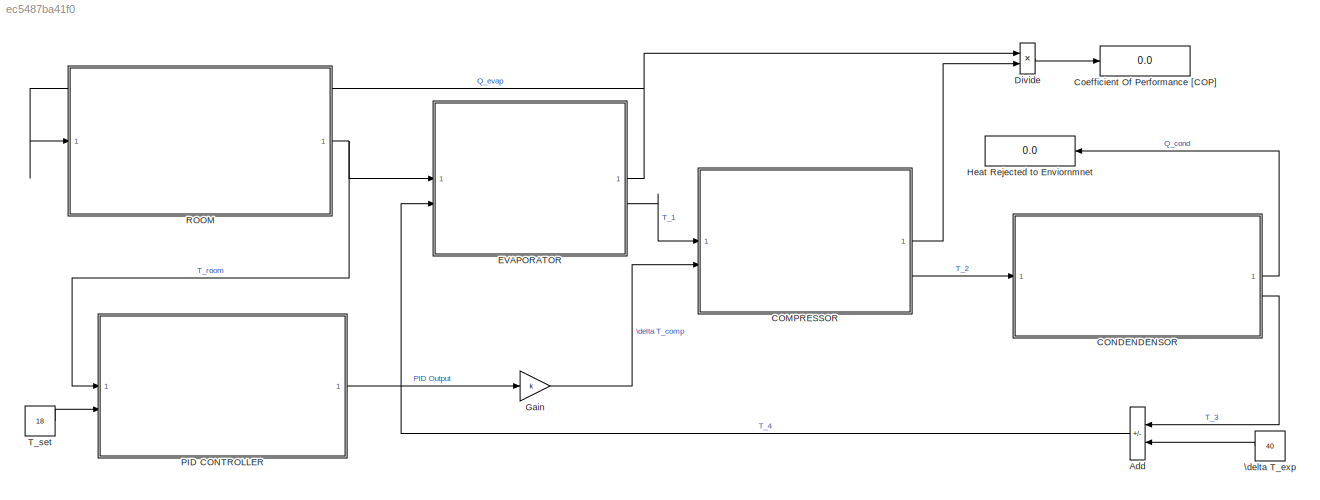
MODEL slx_ec5487ba41f0
KIND model
CONFIG AbsTol = auto
CONFIG EnableMultiTasking = off
CONFIG FixedStep = auto
CONFIG MaxStep = auto
CONFIG MinStep = auto
CONFIG RelTol = 1e-3
CONFIG SampleTimeConstraint = Unconstrained
CONFIG SolverName = VariableStepAuto
CONFIG StartTime = 0.0
CONFIG StopTime = 10.0
BLOCK [Sum] Add
  IconShape = rectangular
  Inputs = +-
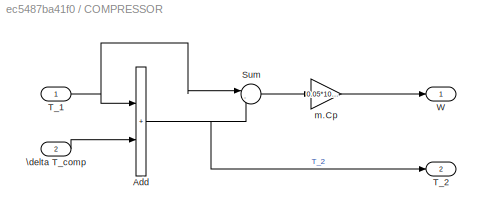
BLOCK [SubSystem] COMPRESSOR 
BLOCK [Sum] COMPRESSOR /Add
  IconShape = rectangular
BLOCK [Sum] COMPRESSOR /Sum
  Inputs = |-+
BLOCK [Inport] COMPRESSOR /T_1
BLOCK [Outport] COMPRESSOR /T_2
  Port = 2
BLOCK [Outport] COMPRESSOR /W
BLOCK [Inport] COMPRESSOR /\delta T_comp  
  Port = 2
BLOCK [Gain] COMPRESSOR /m.Cp
  Gain = 0.05*1000
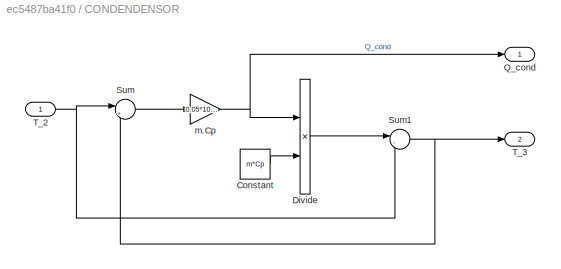
BLOCK [SubSystem] CONDENDENSOR
BLOCK [Constant] CONDENDENSOR/Constant
  Value = m*Cp
BLOCK [Product] CONDENDENSOR/Divide
  Inputs = */
BLOCK [Outport] CONDENDENSOR/Q_cond
BLOCK [Sum] CONDENDENSOR/Sum
  Inputs = |+-
BLOCK [Sum] CONDENDENSOR/Sum1
  Inputs = |-+
BLOCK [Inport] CONDENDENSOR/T_2
BLOCK [Outport] CONDENDENSOR/T_3
  Port = 2
BLOCK [Gain] CONDENDENSOR/m.Cp
  Gain = 0.05*1000
BLOCK [Display] Coefficient Of Performance [COP]
  Decimation = 1
BLOCK [Product] Divide
  Inputs = */
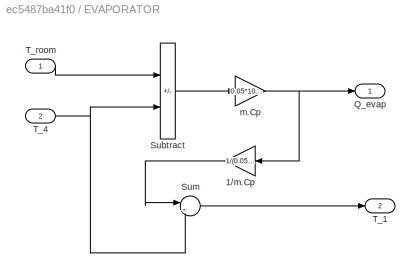
BLOCK [SubSystem] EVAPORATOR
BLOCK [Gain] EVAPORATOR/1//m.Cp
  Gain = 1/(0.05*1000)
BLOCK [Outport] EVAPORATOR/Q_evap
BLOCK [Sum] EVAPORATOR/Subtract
  IconShape = rectangular
  Inputs = +-
BLOCK [Sum] EVAPORATOR/Sum
  Inputs = |++
BLOCK [Outport] EVAPORATOR/T_1
  Port = 2
BLOCK [Inport] EVAPORATOR/T_4
  Port = 2
BLOCK [Inport] EVAPORATOR/T_room
BLOCK [Gain] EVAPORATOR/m.Cp
  Gain = 0.05*1000
BLOCK [Gain] Gain
  Gain = k
BLOCK [Display] Heat Rejected to Enviornmnet
  Decimation = 1
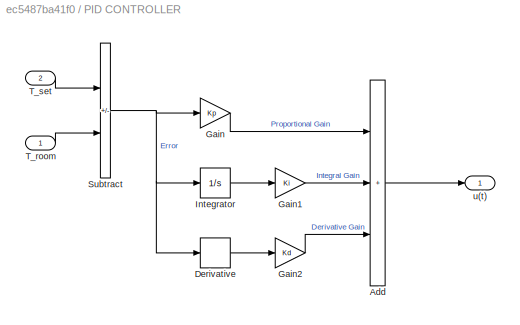
BLOCK [SubSystem] PID CONTROLLER 
BLOCK [Sum] PID CONTROLLER /Add
  IconShape = rectangular
  Inputs = +++
BLOCK [Derivative] PID CONTROLLER /Derivative
BLOCK [Gain] PID CONTROLLER /Gain
  Gain = Kp
BLOCK [Gain] PID CONTROLLER /Gain1
  Gain = Ki
BLOCK [Gain] PID CONTROLLER /Gain2
  Gain = Kd
BLOCK [Integrator] PID CONTROLLER /Integrator
BLOCK [Sum] PID CONTROLLER /Subtract
  IconShape = rectangular
  Inputs = +-
BLOCK [Inport] PID CONTROLLER /T_room
BLOCK [Inport] PID CONTROLLER /T_set
  Port = 2
BLOCK [Outport] PID CONTROLLER /u(t)
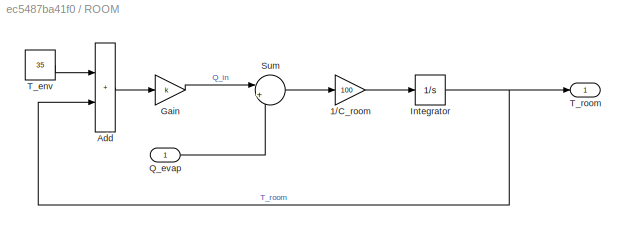
BLOCK [SubSystem] ROOM 
BLOCK [Gain] ROOM /1//C_room
  Gain = 100
BLOCK [Sum] ROOM /Add
  IconShape = rectangular
BLOCK [Gain] ROOM /Gain
  Gain = k
BLOCK [Integrator] ROOM /Integrator
BLOCK [Inport] ROOM /Q_evap
BLOCK [Sum] ROOM /Sum
  Inputs = |+-
BLOCK [Constant] ROOM /T_env
  Value = 35
BLOCK [Outport] ROOM /T_room
BLOCK [Constant] T_set
  Value = 18
BLOCK [Constant] \delta T_exp
  Value = 40
LINE Add:1 -> EVAPORATOR:2
NET COMPRESSOR /Add:1 -> COMPRESSOR /Sum:2, COMPRESSOR /T_2:1
LINE COMPRESSOR /Sum:1 -> COMPRESSOR /m.Cp:1
NET COMPRESSOR /T_1:1 -> COMPRESSOR /Add:1, COMPRESSOR /Sum:1
LINE COMPRESSOR /\delta T_comp  :1 -> COMPRESSOR /Add:2
LINE COMPRESSOR /m.Cp:1 -> COMPRESSOR /W:1
LINE COMPRESSOR :1 -> Divide:2
LINE COMPRESSOR :2 -> CONDENDENSOR:1
LINE CONDENDENSOR/Constant:1 -> CONDENDENSOR/Divide:2
LINE CONDENDENSOR/Divide:1 -> CONDENDENSOR/Sum1:1
NET CONDENDENSOR/Sum1:1 -> CONDENDENSOR/Sum:2, CONDENDENSOR/T_3:1
LINE CONDENDENSOR/Sum:1 -> CONDENDENSOR/m.Cp:1
NET CONDENDENSOR/T_2:1 -> CONDENDENSOR/Sum1:2, CONDENDENSOR/Sum:1
NET CONDENDENSOR/m.Cp:1 -> CONDENDENSOR/Divide:1, CONDENDENSOR/Q_cond:1
LINE CONDENDENSOR:1 -> Heat Rejected to Enviornmnet:1
LINE CONDENDENSOR:2 -> Add:1
LINE Divide:1 -> Coefficient Of Performance [COP]:1
LINE EVAPORATOR/1//m.Cp:1 -> EVAPORATOR/Sum:1
LINE EVAPORATOR/Subtract:1 -> EVAPORATOR/m.Cp:1
LINE EVAPORATOR/Sum:1 -> EVAPORATOR/T_1:1
NET EVAPORATOR/T_4:1 -> EVAPORATOR/Subtract:2, EVAPORATOR/Sum:2
LINE EVAPORATOR/T_room:1 -> EVAPORATOR/Subtract:1
NET EVAPORATOR/m.Cp:1 -> EVAPORATOR/1//m.Cp:1, EVAPORATOR/Q_evap:1
NET EVAPORATOR:1 -> Divide:1, ROOM :1
LINE EVAPORATOR:2 -> COMPRESSOR :1
LINE Gain:1 -> COMPRESSOR :2
LINE PID CONTROLLER /Add:1 -> PID CONTROLLER /u(t):1
LINE PID CONTROLLER /Derivative:1 -> PID CONTROLLER /Gain2:1
LINE PID CONTROLLER /Gain1:1 -> PID CONTROLLER /Add:2
LINE PID CONTROLLER /Gain2:1 -> PID CONTROLLER /Add:3
LINE PID CONTROLLER /Gain:1 -> PID CONTROLLER /Add:1
LINE PID CONTROLLER /Integrator:1 -> PID CONTROLLER /Gain1:1
NET PID CONTROLLER /Subtract:1 -> PID CONTROLLER /Derivative:1, PID CONTROLLER /Gain:1, PID CONTROLLER /Integrator:1
LINE PID CONTROLLER /T_room:1 -> PID CONTROLLER /Subtract:2
LINE PID CONTROLLER /T_set:1 -> PID CONTROLLER /Subtract:1
LINE PID CONTROLLER :1 -> Gain:1
LINE ROOM /1//C_room:1 -> ROOM /Integrator:1
LINE ROOM /Add:1 -> ROOM /Gain:1
LINE ROOM /Gain:1 -> ROOM /Sum:1
NET ROOM /Integrator:1 -> ROOM /Add:2, ROOM /T_room:1
LINE ROOM /Q_evap:1 -> ROOM /Sum:2
LINE ROOM /Sum:1 -> ROOM /1//C_room:1
LINE ROOM /T_env:1 -> ROOM /Add:1
NET ROOM :1 -> EVAPORATOR:1, PID CONTROLLER :1
LINE T_set:1 -> PID CONTROLLER :2
LINE \delta T_exp:1 -> Add:2
note: NET lines group one-source signal fan-out (src -> all destinations, sorted); 1:1 wires keep LINE
